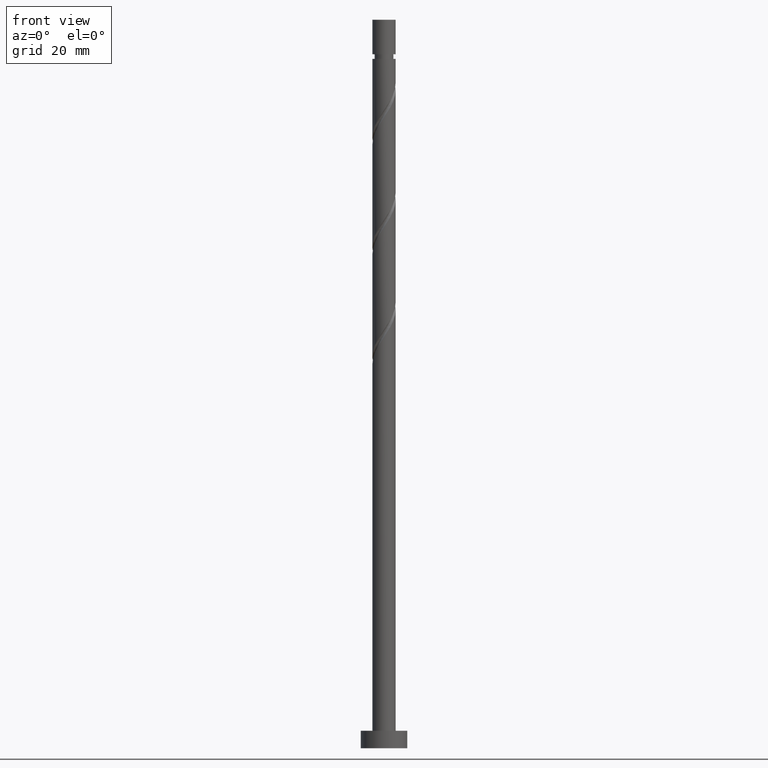
[diagram: clean part render]
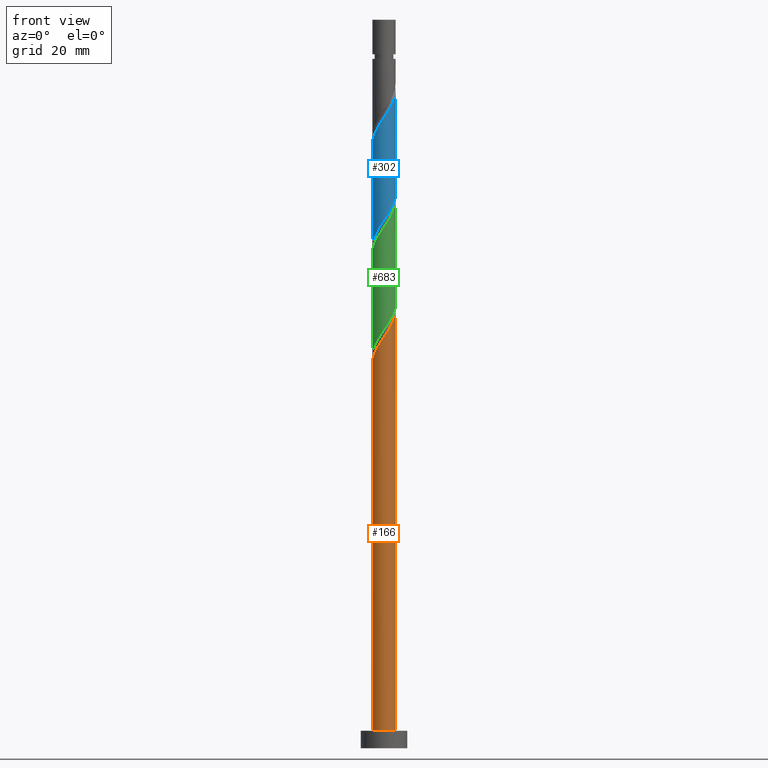
[diagram: same view with three faces highlighted in distinct colors, each labeled with its STEP entity id]
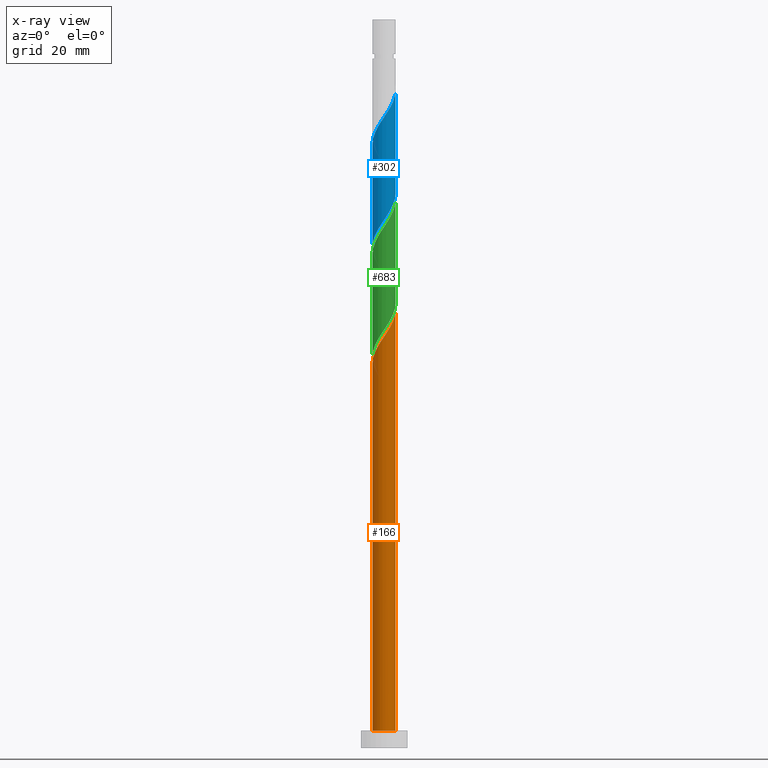
[diagram: x-ray of the same camera — body ghosted, the three highlighted faces saturated]
A machine part, front view with three faces highlighted in distinct colors.
The next image is the same camera in x-ray (body ghosted, the three faces saturated) — at least one of them is partly hidden behind the body in this view.
Their STEP definitions:

[orange] entity #166 — the highlighted cylindrical surface (edge-blend (fillet) strip) has radius 2 mm, axis along (-0, -0, -1).
#74 = CARTESIAN_POINT ( 'NONE',  ( -1.351737732275875903, -1.474043792816781329, 68.37408984378713228 ) ) ;
#81 = CARTESIAN_POINT ( 'NONE',  ( 1.951079754338989725, -0.5418766612026986174, 74.49492317712046940 ) ) ;
#94 = EDGE_LOOP ( 'NONE', ( #929, #1574, #340, #1118 ) ) ;
#125 = CARTESIAN_POINT ( 'NONE',  ( 2.000000000000000000, 2.449293598294705921E-16, 3.000000000000000000 ) ) ;
#133 = EDGE_CURVE ( 'NONE', #1304, #1297, #585, .T. ) ;
#166 = ADVANCED_FACE ( 'NONE', ( #1068 ), #1549, .T. ) ;
#195 = CARTESIAN_POINT ( 'NONE',  ( -1.896963788657571426, -0.7084284778787407477, 66.96158984378715218 ) ) ;
#202 = CARTESIAN_POINT ( 'NONE',  ( 0.3979949748426490075, -1.960000000000002629, 71.19908984378712091 ) ) ;
#208 = CARTESIAN_POINT ( 'NONE',  ( 2.000000000000003109, -0.1139474748928623327, 75.13512374538797189 ) ) ;
#214 = CARTESIAN_POINT ( 'NONE',  ( -2.000000000000002665, 2.773724014893057384E-15, 65.88977510336466992 ) ) ;
#238 = VERTEX_POINT ( 'NONE', #356 ) ;
#271 = EDGE_CURVE ( 'NONE', #238, #1446, #848, .T. ) ;
#320 = CIRCLE ( 'NONE', #854, 2.000000000000000000 ) ;
#327 = CARTESIAN_POINT ( 'NONE',  ( 1.987057982840712000, -0.2271575946980707028, 74.96575651045380084 ) ) ;
#335 = CARTESIAN_POINT ( 'NONE',  ( -2.000000000000002665, 2.773724014893056989E-15, 65.88977510336466992 ) ) ;
#340 = ORIENTED_EDGE ( 'NONE', *, *, #133, .T. ) ;
#356 = CARTESIAN_POINT ( 'NONE',  ( 2.000000000000002220, 2.518841267578560185E-15, 75.30644177003134132 ) ) ;
#373 = VECTOR ( 'NONE', #545, 1000.000000000000000 ) ;
#442 = CARTESIAN_POINT ( 'NONE',  ( -0.5418766612026986174, -1.951079754338989725, 69.78658984378714081 ) ) ;
#452 = DIRECTION ( 'NONE',  ( -0.000000000000000000, -0.000000000000000000, -1.000000000000000000 ) ) ;
#460 = DIRECTION ( 'NONE',  ( -1.000000000000000000, 0.000000000000000000, 0.000000000000000000 ) ) ;
#545 = DIRECTION ( 'NONE',  ( -0.000000000000000000, -0.000000000000000000, -1.000000000000000000 ) ) ;
#560 = CARTESIAN_POINT ( 'NONE',  ( -0.8300743961697162332, -1.819608885673922094, 69.31575651045379516 ) ) ;
#566 = CARTESIAN_POINT ( 'NONE',  ( 1.259949568624708638, -1.585203333415018845, 72.61158984378710102 ) ) ;
#569 = CARTESIAN_POINT ( 'NONE',  ( 0.000000000000000000, 0.000000000000000000, 125.0000000000000000 ) ) ;
#585 = LINE ( 'NONE', #1295, #1333 ) ;
#609 = CARTESIAN_POINT ( 'NONE',  ( 0.000000000000000000, 0.000000000000000000, 3.000000000000000000 ) ) ;
#672 = CARTESIAN_POINT ( 'NONE',  ( -1.585203333415018845, -1.259949568624708638, 67.90325651045380084 ) ) ;
#674 = EDGE_CURVE ( 'NONE', #1304, #238, #1416, .T. ) ;
#679 = CARTESIAN_POINT ( 'NONE',  ( 1.688138017008854241, -1.118272131136733405, 73.55325651045380653 ) ) ;
#692 = CARTESIAN_POINT ( 'NONE',  ( 0.7084284778787407477, -1.896963788657571426, 71.66992317712045235 ) ) ;
#793 = CARTESIAN_POINT ( 'NONE',  ( -2.000000000000003109, -0.2010075630518421974, 66.19198643953338035 ) ) ;
#808 = CARTESIAN_POINT ( 'NONE',  ( 0.9841890232517246373, -1.741083561036295801, 72.14075651045379800 ) ) ;
#848 = LINE ( 'NONE', #871, #373 ) ;
#854 = AXIS2_PLACEMENT_3D ( 'NONE', #609, #1094, #1557 ) ;
#871 = CARTESIAN_POINT ( 'NONE',  ( 2.000000000000000000, 2.449293598294705921E-16, 125.0000000000000000 ) ) ;
#926 = CARTESIAN_POINT ( 'NONE',  ( -0.2271575946980706473, -1.987057982840712000, 70.25742317712048646 ) ) ;
#929 = ORIENTED_EDGE ( 'NONE', *, *, #271, .F. ) ;
#934 = CARTESIAN_POINT ( 'NONE',  ( -1.118272131136732961, -1.688138017008854241, 68.84492317712046372 ) ) ;
#1054 = CARTESIAN_POINT ( 'NONE',  ( 1.474043792816781329, -1.351737732275875903, 73.08242317712044667 ) ) ;
#1068 = FACE_OUTER_BOUND ( 'NONE', #94, .T. ) ;
#1094 = DIRECTION ( 'NONE',  ( 0.000000000000000000, 0.000000000000000000, 1.000000000000000000 ) ) ;
#1118 = ORIENTED_EDGE ( 'NONE', *, *, #1406, .T. ) ;
#1186 = CARTESIAN_POINT ( 'NONE',  ( 2.000000000000002220, 2.518841267578560185E-15, 75.30644177003132711 ) ) ;
#1276 = DIRECTION ( 'NONE',  ( -0.000000000000000000, -0.000000000000000000, -1.000000000000000000 ) ) ;
#1295 = CARTESIAN_POINT ( 'NONE',  ( -2.000000000000000000, 0.000000000000000000, 125.0000000000000000 ) ) ;
#1297 = VERTEX_POINT ( 'NONE', #1464 ) ;
#1304 = VERTEX_POINT ( 'NONE', #214 ) ;
#1333 = VECTOR ( 'NONE', #1276, 1000.000000000000000 ) ;
#1406 = EDGE_CURVE ( 'NONE', #1297, #1446, #320, .T. ) ;
#1409 = CARTESIAN_POINT ( 'NONE',  ( 0.08756147180655743378, -2.023036211342432722, 70.72825651045381790 ) ) ;
#1416 =( BOUNDED_CURVE ( )  B_SPLINE_CURVE ( 2, ( #335, #793, #1523, #195, #1546, #672, #74, #934, #560, #442, #926, #1409, #202, #692, #808, #566, #1054, #679, #1417, #81, #327, #208, #1186 ),
 .UNSPECIFIED., .F., .T. ) 
 B_SPLINE_CURVE_WITH_KNOTS ( ( 3, 2, 2, 2, 2, 2, 2, 2, 2, 2, 2, 3 ),
 ( 0.05453220231385515898, 0.06250000000000000000, 0.07499999999999995559, 0.08750000000000002220, 0.09999999999999997780, 0.1125000000000000444, 0.1250000000000000000, 0.1374999999999999556, 0.1500000000000000222, 0.1624999999999999778, 0.1750000000000000444, 0.1795322023138553325 ),
 .UNSPECIFIED. ) 
 CURVE ( )  GEOMETRIC_REPRESENTATION_ITEM ( )  RATIONAL_B_SPLINE_CURVE ( ( 0.9039174447099402876, 0.9019565955404695856, 0.9090909090909180534, 0.8978984914501340064, 0.9090909090909180534, 0.8978984914501340064, 0.9090909090909180534, 0.8978984914501340064, 0.9090909090909180534, 0.8978984914501340064, 0.9090909090909180534, 0.8978984914501340064, 0.9090909090909180534, 0.8978984914501340064, 0.9090909090909180534, 0.8978984914501340064, 0.9090909090909180534, 0.8978984914501340064, 0.9090909090909180534, 0.8978984914501340064, 0.9090909090909180534, 0.9050328050005823632, 0.9039174447099402876 ) ) 
 REPRESENTATION_ITEM ( '' )  );
#1417 = CARTESIAN_POINT ( 'NONE',  ( 1.819608885673922094, -0.8300743961697162332, 74.02408984378715218 ) ) ;
#1446 = VERTEX_POINT ( 'NONE', #125 ) ;
#1462 = AXIS2_PLACEMENT_3D ( 'NONE', #569, #452, #460 ) ;
#1464 = CARTESIAN_POINT ( 'NONE',  ( -2.000000000000000000, 0.000000000000000000, 3.000000000000000000 ) ) ;
#1523 = CARTESIAN_POINT ( 'NONE',  ( -1.960000000000002629, -0.3979949748426491740, 66.49075651045380653 ) ) ;
#1546 = CARTESIAN_POINT ( 'NONE',  ( -1.741083561036295801, -0.9841890232517248593, 67.43242317712046940 ) ) ;
#1549 = CYLINDRICAL_SURFACE ( 'NONE', #1462, 2.000000000000000000 ) ;
#1557 = DIRECTION ( 'NONE',  ( 1.000000000000000000, 0.000000000000000000, 0.000000000000000000 ) ) ;
#1574 = ORIENTED_EDGE ( 'NONE', *, *, #674, .F. ) ;

[blue] entity #302 — the highlighted cylindrical surface (edge-blend (fillet) strip) has radius 2 mm, axis along (-0, -0, -1).
#57 = CARTESIAN_POINT ( 'NONE',  ( 0.8300743961697144568, -1.819608885673919207, 91.91575651045378947 ) ) ;
#105 = CARTESIAN_POINT ( 'NONE',  ( 1.987057982840712000, -0.2271575946980707028, 112.6324231771204438 ) ) ;
#107 = LINE ( 'NONE', #717, #527 ) ;
#114 = CARTESIAN_POINT ( 'NONE',  ( -1.351737732275875903, -1.474043792816781329, 106.0407565104538037 ) ) ;
#131 = CARTESIAN_POINT ( 'NONE',  ( -1.819608885673919207, -0.8300743961697144568, 87.20742317712046088 ) ) ;
#178 = CARTESIAN_POINT ( 'NONE',  ( 2.000000000000000888, -0.2010075630518394219, 95.03952658137426113 ) ) ;
#186 = CARTESIAN_POINT ( 'NONE',  ( -1.474043792816780218, -1.351737732275873238, 88.14908984378713797 ) ) ;
#215 = VECTOR ( 'NONE', #1367, 1000.000000000000000 ) ;
#235 = CARTESIAN_POINT ( 'NONE',  ( -2.000000000000002665, -0.2010075630518444456, 103.8586531062000375 ) ) ;
#245 = CARTESIAN_POINT ( 'NONE',  ( -1.987057982840708892, -0.2271575946980696759, 86.26575651045379800 ) ) ;
#253 = EDGE_CURVE ( 'NONE', #1420, #1381, #1251, .T. ) ;
#258 = CARTESIAN_POINT ( 'NONE',  ( -0.8300743961697162332, -1.819608885673922094, 106.9824231771204950 ) ) ;
#274 = CARTESIAN_POINT ( 'NONE',  ( 1.959999999999999520, -0.3979949748426494516, 94.74075651045380653 ) ) ;
#298 = CARTESIAN_POINT ( 'NONE',  ( 0.000000000000000000, 0.000000000000000000, 125.0000000000000000 ) ) ;
#302 = ADVANCED_FACE ( 'NONE', ( #1351 ), #1018, .T. ) ;
#305 = CARTESIAN_POINT ( 'NONE',  ( -0.7084284778787401926, -1.896963788657568983, 89.56158984378713228 ) ) ;
#332 = EDGE_LOOP ( 'NONE', ( #647, #1022, #1558, #754 ) ) ;
#365 = CARTESIAN_POINT ( 'NONE',  ( 2.000000000000002665, 1.499310278320571585E-15, 112.9731084366980269 ) ) ;
#376 = DIRECTION ( 'NONE',  ( -0.000000000000000000, -0.000000000000000000, -1.000000000000000000 ) ) ;
#429 = CARTESIAN_POINT ( 'NONE',  ( 1.351737732275873238, -1.474043792816780218, 92.85742317712046656 ) ) ;
#484 = CARTESIAN_POINT ( 'NONE',  ( 1.951079754338989725, -0.5418766612026986174, 112.1615898437871124 ) ) ;
#486 = CARTESIAN_POINT ( 'NONE',  ( -1.999999999999999112, -0.1139474748928690634, 86.09638927551962695 ) ) ;
#493 = CARTESIAN_POINT ( 'NONE',  ( -2.000000000000003109, 1.004537886474782893E-15, 103.5564417700313413 ) ) ;
#502 = CARTESIAN_POINT ( 'NONE',  ( -2.000000000000003109, 1.004537886474782893E-15, 103.5564417700313413 ) ) ;
#527 = VECTOR ( 'NONE', #376, 1000.000000000000000 ) ;
#544 = CARTESIAN_POINT ( 'NONE',  ( -0.08756147180655821094, -2.023036211342430502, 90.50325651045382358 ) ) ;
#552 = CARTESIAN_POINT ( 'NONE',  ( 1.999999999999999556, 2.009075772949579986E-15, 95.34173791754292893 ) ) ;
#591 = CARTESIAN_POINT ( 'NONE',  ( 1.259949568624708638, -1.585203333415018845, 110.2782565104538293 ) ) ;
#600 = CARTESIAN_POINT ( 'NONE',  ( 1.688138017008854241, -1.118272131136733405, 111.2199231771204495 ) ) ;
#616 = CARTESIAN_POINT ( 'NONE',  ( -1.999999999999999556, -2.278951623047284666E-15, 85.92507125087625752 ) ) ;
#647 = ORIENTED_EDGE ( 'NONE', *, *, #967, .F. ) ;
#663 = VERTEX_POINT ( 'NONE', #552 ) ;
#704 = CARTESIAN_POINT ( 'NONE',  ( 2.000000000000002665, 1.499310278320571585E-15, 112.9731084366980269 ) ) ;
#715 = CARTESIAN_POINT ( 'NONE',  ( -0.2271575946980706473, -1.987057982840712000, 107.9240898437871721 ) ) ;
#717 = CARTESIAN_POINT ( 'NONE',  ( -2.000000000000000000, 0.000000000000000000, 125.0000000000000000 ) ) ;
#724 = CARTESIAN_POINT ( 'NONE',  ( -1.896963788657571426, -0.7084284778787407477, 104.6282565104537952 ) ) ;
#728 =( BOUNDED_CURVE ( )  B_SPLINE_CURVE ( 2, ( #1501, #178, #274, #993, #1474, #749, #429, #909, #57, #1034, #783, #544, #1516, #305, #1393, #1272, #186, #1150, #131, #1218, #245, #486, #616 ),
 .UNSPECIFIED., .F., .T. ) 
 B_SPLINE_CURVE_WITH_KNOTS ( ( 3, 2, 2, 2, 2, 2, 2, 2, 2, 2, 2, 3 ),
 ( 0.5545322023138550271, 0.5625000000000000000, 0.5749999999999999556, 0.5875000000000000222, 0.5999999999999999778, 0.6125000000000000444, 0.6250000000000000000, 0.6374999999999999556, 0.6500000000000000222, 0.6624999999999999778, 0.6750000000000000444, 0.6795322023138550271 ),
 .UNSPECIFIED. ) 
 CURVE ( )  GEOMETRIC_REPRESENTATION_ITEM ( )  RATIONAL_B_SPLINE_CURVE ( ( 0.9039174447099341814, 0.9019565955404631463, 0.9090909090909118362, 0.8978984914501279002, 0.9090909090909118362, 0.8978984914501279002, 0.9090909090909118362, 0.8978984914501279002, 0.9090909090909118362, 0.8978984914501279002, 0.9090909090909118362, 0.8978984914501279002, 0.9090909090909118362, 0.8978984914501279002, 0.9090909090909118362, 0.8978984914501279002, 0.9090909090909118362, 0.8978984914501279002, 0.9090909090909118362, 0.8978984914501279002, 0.9090909090909118362, 0.9050328050005764791, 0.9039174447099341814 ) ) 
 REPRESENTATION_ITEM ( '' )  );
#749 = CARTESIAN_POINT ( 'NONE',  ( 1.585203333415016180, -1.259949568624707972, 93.32825651045381221 ) ) ;
#754 = ORIENTED_EDGE ( 'NONE', *, *, #1339, .F. ) ;
#773 = LINE ( 'NONE', #1023, #215 ) ;
#783 = CARTESIAN_POINT ( 'NONE',  ( 0.2271575946980696203, -1.987057982840708892, 90.97408984378712660 ) ) ;
#829 = CARTESIAN_POINT ( 'NONE',  ( 1.474043792816781329, -1.351737732275875903, 110.7490898437871181 ) ) ;
#839 = CARTESIAN_POINT ( 'NONE',  ( 0.3979949748426490075, -1.960000000000002629, 108.8657565104538065 ) ) ;
#909 = CARTESIAN_POINT ( 'NONE',  ( 1.118272131136731407, -1.688138017008852021, 92.38658984378716355 ) ) ;
#966 = VERTEX_POINT ( 'NONE', #1015 ) ;
#967 = EDGE_CURVE ( 'NONE', #1381, #663, #773, .T. ) ;
#972 = CARTESIAN_POINT ( 'NONE',  ( 2.000000000000003109, -0.1139474748928616527, 112.8017904120546291 ) ) ;
#988 = CARTESIAN_POINT ( 'NONE',  ( -1.960000000000002629, -0.3979949748426491740, 104.1574231771204637 ) ) ;
#993 = CARTESIAN_POINT ( 'NONE',  ( 1.896963788657568983, -0.7084284778787403036, 94.26992317712047509 ) ) ;
#994 = CARTESIAN_POINT ( 'NONE',  ( 0.7084284778787407477, -1.896963788657571426, 109.3365898437871664 ) ) ;
#1015 = CARTESIAN_POINT ( 'NONE',  ( -1.999999999999999556, -2.278951623047284666E-15, 85.92507125087625752 ) ) ;
#1018 = CYLINDRICAL_SURFACE ( 'NONE', #1088, 2.000000000000000000 ) ;
#1022 = ORIENTED_EDGE ( 'NONE', *, *, #253, .F. ) ;
#1023 = CARTESIAN_POINT ( 'NONE',  ( 2.000000000000000000, 2.449293598294705921E-16, 125.0000000000000000 ) ) ;
#1034 = CARTESIAN_POINT ( 'NONE',  ( 0.5418766612026972851, -1.951079754338987282, 91.44492317712045804 ) ) ;
#1088 = AXIS2_PLACEMENT_3D ( 'NONE', #298, #1265, #1362 ) ;
#1150 = CARTESIAN_POINT ( 'NONE',  ( -1.688138017008852021, -1.118272131136731407, 87.67825651045382074 ) ) ;
#1195 = CARTESIAN_POINT ( 'NONE',  ( -1.741083561036295801, -0.9841890232517248593, 105.0990898437871266 ) ) ;
#1208 = CARTESIAN_POINT ( 'NONE',  ( 0.08756147180655743378, -2.023036211342432722, 108.3949231771204467 ) ) ;
#1216 = CARTESIAN_POINT ( 'NONE',  ( 1.819608885673922094, -0.8300743961697162332, 111.6907565104537952 ) ) ;
#1218 = CARTESIAN_POINT ( 'NONE',  ( -1.951079754338987282, -0.5418766612026972851, 86.73658984378717207 ) ) ;
#1251 =( BOUNDED_CURVE ( )  B_SPLINE_CURVE ( 2, ( #502, #235, #988, #724, #1195, #1468, #114, #1345, #258, #1310, #715, #1208, #839, #994, #1475, #591, #829, #600, #1216, #484, #105, #972, #365 ),
 .UNSPECIFIED., .F., .T. ) 
 B_SPLINE_CURVE_WITH_KNOTS ( ( 3, 2, 2, 2, 2, 2, 2, 2, 2, 2, 2, 3 ),
 ( 0.5545322023138552492, 0.5625000000000000000, 0.5749999999999999556, 0.5875000000000000222, 0.5999999999999999778, 0.6125000000000000444, 0.6250000000000000000, 0.6374999999999999556, 0.6500000000000000222, 0.6624999999999999778, 0.6750000000000000444, 0.6795322023138553602 ),
 .UNSPECIFIED. ) 
 CURVE ( )  GEOMETRIC_REPRESENTATION_ITEM ( )  RATIONAL_B_SPLINE_CURVE ( ( 0.9039174447099402876, 0.9019565955404695856, 0.9090909090909180534, 0.8978984914501340064, 0.9090909090909180534, 0.8978984914501340064, 0.9090909090909180534, 0.8978984914501340064, 0.9090909090909180534, 0.8978984914501340064, 0.9090909090909180534, 0.8978984914501340064, 0.9090909090909180534, 0.8978984914501340064, 0.9090909090909180534, 0.8978984914501340064, 0.9090909090909180534, 0.8978984914501340064, 0.9090909090909180534, 0.8978984914501340064, 0.9090909090909180534, 0.9050328050005822522, 0.9039174447099401766 ) ) 
 REPRESENTATION_ITEM ( '' )  );
#1265 = DIRECTION ( 'NONE',  ( -0.000000000000000000, -0.000000000000000000, -1.000000000000000000 ) ) ;
#1272 = CARTESIAN_POINT ( 'NONE',  ( -1.259949568624707750, -1.585203333415016180, 88.61992317712046940 ) ) ;
#1310 = CARTESIAN_POINT ( 'NONE',  ( -0.5418766612026986174, -1.951079754338989725, 107.4532565104538264 ) ) ;
#1339 = EDGE_CURVE ( 'NONE', #663, #966, #728, .T. ) ;
#1345 = CARTESIAN_POINT ( 'NONE',  ( -1.118272131136732961, -1.688138017008854241, 106.5115898437871493 ) ) ;
#1351 = FACE_OUTER_BOUND ( 'NONE', #332, .T. ) ;
#1362 = DIRECTION ( 'NONE',  ( -1.000000000000000000, 0.000000000000000000, 0.000000000000000000 ) ) ;
#1367 = DIRECTION ( 'NONE',  ( -0.000000000000000000, -0.000000000000000000, -1.000000000000000000 ) ) ;
#1381 = VERTEX_POINT ( 'NONE', #704 ) ;
#1393 = CARTESIAN_POINT ( 'NONE',  ( -0.9841890232517239712, -1.741083561036292249, 89.09075651045382926 ) ) ;
#1420 = VERTEX_POINT ( 'NONE', #493 ) ;
#1427 = EDGE_CURVE ( 'NONE', #1420, #966, #107, .T. ) ;
#1468 = CARTESIAN_POINT ( 'NONE',  ( -1.585203333415018845, -1.259949568624708638, 105.5699231771204865 ) ) ;
#1474 = CARTESIAN_POINT ( 'NONE',  ( 1.741083561036292249, -0.9841890232517241932, 93.79908984378712944 ) ) ;
#1475 = CARTESIAN_POINT ( 'NONE',  ( 0.9841890232517246373, -1.741083561036295801, 109.8074231771204552 ) ) ;
#1501 = CARTESIAN_POINT ( 'NONE',  ( 1.999999999999999556, 2.009075772949579591E-15, 95.34173791754292893 ) ) ;
#1516 = CARTESIAN_POINT ( 'NONE',  ( -0.3979949748426492850, -1.959999999999999520, 90.03242317712047793 ) ) ;
#1558 = ORIENTED_EDGE ( 'NONE', *, *, #1427, .T. ) ;

[green] entity #683 — the highlighted cylindrical surface (edge-blend (fillet) strip) has radius 2 mm, axis along (-0, -0, -1).
#1 = CARTESIAN_POINT ( 'NONE',  ( -1.999999999999999556, -2.278951623047284666E-15, 67.09173791754292893 ) ) ;
#21 = CARTESIAN_POINT ( 'NONE',  ( 1.951079754338989725, -0.5418766612026986174, 93.32825651045378379 ) ) ;
#32 = DIRECTION ( 'NONE',  ( -0.000000000000000000, -0.000000000000000000, -1.000000000000000000 ) ) ;
#61 = EDGE_LOOP ( 'NONE', ( #301, #633, #697, #617 ) ) ;
#88 = CYLINDRICAL_SURFACE ( 'NONE', #397, 2.000000000000000000 ) ;
#109 = CARTESIAN_POINT ( 'NONE',  ( -1.987057982840708892, -0.2271575946980696759, 67.43242317712046940 ) ) ;
#120 = CARTESIAN_POINT ( 'NONE',  ( -0.9841890232517239712, -1.741083561036292249, 70.25742317712048646 ) ) ;
#127 = CARTESIAN_POINT ( 'NONE',  ( -1.474043792816780218, -1.351737732275873238, 69.31575651045378095 ) ) ;
#134 = CARTESIAN_POINT ( 'NONE',  ( -1.259949568624707750, -1.585203333415016180, 69.78658984378715502 ) ) ;
#231 = CARTESIAN_POINT ( 'NONE',  ( 0.5418766612026972851, -1.951079754338987282, 72.61158984378714365 ) ) ;
#240 = CARTESIAN_POINT ( 'NONE',  ( 0.7084284778787407477, -1.896963788657571426, 90.50325651045378095 ) ) ;
#247 = CARTESIAN_POINT ( 'NONE',  ( -0.2271575946980706473, -1.987057982840712000, 89.09075651045381505 ) ) ;
#255 = CARTESIAN_POINT ( 'NONE',  ( -1.999999999999999556, -0.1139474748928663017, 67.26305594218629835 ) ) ;
#291 = CARTESIAN_POINT ( 'NONE',  ( 2.000000000000002220, 2.518841267578560185E-15, 94.13977510336466992 ) ) ;
#301 = ORIENTED_EDGE ( 'NONE', *, *, #421, .F. ) ;
#342 = VECTOR ( 'NONE', #32, 1000.000000000000000 ) ;
#343 = CARTESIAN_POINT ( 'NONE',  ( -1.951079754338987282, -0.5418766612026972851, 67.90325651045381505 ) ) ;
#362 = CARTESIAN_POINT ( 'NONE',  ( 1.999999999999999556, 2.009075772949579986E-15, 76.50840458420958612 ) ) ;
#369 = LINE ( 'NONE', #1078, #623 ) ;
#370 = CARTESIAN_POINT ( 'NONE',  ( -1.896963788657571426, -0.7084284778787407477, 85.79492317712045235 ) ) ;
#378 = CARTESIAN_POINT ( 'NONE',  ( 1.351737732275873238, -1.474043792816780218, 74.02408984378712375 ) ) ;
#384 = CARTESIAN_POINT ( 'NONE',  ( 2.000000000000003109, -0.1139474748928658715, 93.96845707872131470 ) ) ;
#390 = VERTEX_POINT ( 'NONE', #291 ) ;
#391 =( BOUNDED_CURVE ( )  B_SPLINE_CURVE ( 2, ( #362, #699, #1458, #1432, #729, #1324, #378, #1192, #1198, #231, #464, #949, #1206, #1212, #120, #134, #127, #605, #1342, #343, #109, #255, #1 ),
 .UNSPECIFIED., .F., .T. ) 
 B_SPLINE_CURVE_WITH_KNOTS ( ( 3, 2, 2, 2, 2, 2, 2, 2, 2, 2, 2, 3 ),
 ( 0.8045322023138552492, 0.8125000000000000000, 0.8249999999999999556, 0.8375000000000000222, 0.8499999999999999778, 0.8625000000000000444, 0.8750000000000000000, 0.8874999999999999556, 0.9000000000000000222, 0.9124999999999999778, 0.9250000000000000444, 0.9295322023138551382 ),
 .UNSPECIFIED. ) 
 CURVE ( )  GEOMETRIC_REPRESENTATION_ITEM ( )  RATIONAL_B_SPLINE_CURVE ( ( 0.9039174447099340703, 0.9019565955404634794, 0.9090909090909118362, 0.8978984914501279002, 0.9090909090909118362, 0.8978984914501279002, 0.9090909090909118362, 0.8978984914501279002, 0.9090909090909118362, 0.8978984914501279002, 0.9090909090909118362, 0.8978984914501279002, 0.9090909090909118362, 0.8978984914501279002, 0.9090909090909118362, 0.8978984914501279002, 0.9090909090909118362, 0.8978984914501279002, 0.9090909090909118362, 0.8978984914501279002, 0.9090909090909118362, 0.9050328050005762570, 0.9039174447099340703 ) ) 
 REPRESENTATION_ITEM ( '' )  );
#397 = AXIS2_PLACEMENT_3D ( 'NONE', #455, #941, #1424 ) ;
#421 = EDGE_CURVE ( 'NONE', #390, #1040, #1001, .T. ) ;
#430 = CARTESIAN_POINT ( 'NONE',  ( -2.000000000000002665, 2.773724014893057384E-15, 84.72310843669802694 ) ) ;
#435 = CARTESIAN_POINT ( 'NONE',  ( -1.999999999999999556, -2.278951623047284666E-15, 67.09173791754292893 ) ) ;
#455 = CARTESIAN_POINT ( 'NONE',  ( 0.000000000000000000, 0.000000000000000000, 125.0000000000000000 ) ) ;
#464 = CARTESIAN_POINT ( 'NONE',  ( 0.2271575946980696203, -1.987057982840708892, 72.14075651045378379 ) ) ;
#474 = CARTESIAN_POINT ( 'NONE',  ( -1.351737732275875903, -1.474043792816781329, 87.20742317712046088 ) ) ;
#519 = VERTEX_POINT ( 'NONE', #435 ) ;
#536 = CARTESIAN_POINT ( 'NONE',  ( 1.819608885673922094, -0.8300743961697162332, 92.85742317712045235 ) ) ;
#542 = VERTEX_POINT ( 'NONE', #430 ) ;
#557 =( BOUNDED_CURVE ( )  B_SPLINE_CURVE ( 2, ( #588, #855, #1080, #370, #1560, #1336, #474, #960, #969, #1441, #247, #1316, #1449, #240, #720, #712, #1382, #1505, #536, #21, #1244, #384, #868 ),
 .UNSPECIFIED., .F., .T. ) 
 B_SPLINE_CURVE_WITH_KNOTS ( ( 3, 2, 2, 2, 2, 2, 2, 2, 2, 2, 2, 3 ),
 ( 0.3045322023138552492, 0.3125000000000000000, 0.3249999999999999556, 0.3375000000000000222, 0.3499999999999999778, 0.3625000000000000444, 0.3750000000000000000, 0.3874999999999999556, 0.4000000000000000222, 0.4124999999999999778, 0.4250000000000000444, 0.4295322023138551937 ),
 .UNSPECIFIED. ) 
 CURVE ( )  GEOMETRIC_REPRESENTATION_ITEM ( )  RATIONAL_B_SPLINE_CURVE ( ( 0.9039174447099402876, 0.9019565955404695856, 0.9090909090909180534, 0.8978984914501340064, 0.9090909090909180534, 0.8978984914501340064, 0.9090909090909180534, 0.8978984914501340064, 0.9090909090909180534, 0.8978984914501340064, 0.9090909090909180534, 0.8978984914501340064, 0.9090909090909180534, 0.8978984914501340064, 0.9090909090909180534, 0.8978984914501340064, 0.9090909090909180534, 0.8978984914501340064, 0.9090909090909180534, 0.8978984914501340064, 0.9090909090909180534, 0.9050328050005823632, 0.9039174447099402876 ) ) 
 REPRESENTATION_ITEM ( '' )  );
#588 = CARTESIAN_POINT ( 'NONE',  ( -2.000000000000002665, 2.773724014893056989E-15, 84.72310843669802694 ) ) ;
#605 = CARTESIAN_POINT ( 'NONE',  ( -1.688138017008852021, -1.118272131136731407, 68.84492317712046372 ) ) ;
#617 = ORIENTED_EDGE ( 'NONE', *, *, #689, .F. ) ;
#623 = VECTOR ( 'NONE', #975, 1000.000000000000000 ) ;
#633 = ORIENTED_EDGE ( 'NONE', *, *, #790, .F. ) ;
#683 = ADVANCED_FACE ( 'NONE', ( #1180 ), #88, .T. ) ;
#689 = EDGE_CURVE ( 'NONE', #1040, #519, #391, .T. ) ;
#697 = ORIENTED_EDGE ( 'NONE', *, *, #1237, .T. ) ;
#699 = CARTESIAN_POINT ( 'NONE',  ( 1.999999999999999112, -0.2010075630518448897, 76.20619324804090411 ) ) ;
#712 = CARTESIAN_POINT ( 'NONE',  ( 1.259949568624708638, -1.585203333415018845, 91.44492317712048646 ) ) ;
#720 = CARTESIAN_POINT ( 'NONE',  ( 0.9841890232517246373, -1.741083561036295801, 90.97408984378711239 ) ) ;
#729 = CARTESIAN_POINT ( 'NONE',  ( 1.741083561036292249, -0.9841890232517241932, 74.96575651045380084 ) ) ;
#750 = CARTESIAN_POINT ( 'NONE',  ( 2.000000000000000000, 2.449293598294705921E-16, 125.0000000000000000 ) ) ;
#790 = EDGE_CURVE ( 'NONE', #542, #390, #557, .T. ) ;
#791 = CARTESIAN_POINT ( 'NONE',  ( 1.999999999999999556, 2.009075772949579986E-15, 76.50840458420958612 ) ) ;
#855 = CARTESIAN_POINT ( 'NONE',  ( -2.000000000000002665, -0.2010075630518444456, 85.02531977286673737 ) ) ;
#868 = CARTESIAN_POINT ( 'NONE',  ( 2.000000000000002220, 2.518841267578560185E-15, 94.13977510336466992 ) ) ;
#941 = DIRECTION ( 'NONE',  ( -0.000000000000000000, -0.000000000000000000, -1.000000000000000000 ) ) ;
#949 = CARTESIAN_POINT ( 'NONE',  ( -0.08756147180655821094, -2.023036211342430502, 71.66992317712045235 ) ) ;
#960 = CARTESIAN_POINT ( 'NONE',  ( -1.118272131136732961, -1.688138017008854241, 87.67825651045379232 ) ) ;
#969 = CARTESIAN_POINT ( 'NONE',  ( -0.8300743961697162332, -1.819608885673922094, 88.14908984378713797 ) ) ;
#975 = DIRECTION ( 'NONE',  ( -0.000000000000000000, -0.000000000000000000, -1.000000000000000000 ) ) ;
#1001 = LINE ( 'NONE', #750, #342 ) ;
#1040 = VERTEX_POINT ( 'NONE', #791 ) ;
#1078 = CARTESIAN_POINT ( 'NONE',  ( -2.000000000000000000, 0.000000000000000000, 125.0000000000000000 ) ) ;
#1080 = CARTESIAN_POINT ( 'NONE',  ( -1.960000000000002629, -0.3979949748426491740, 85.32408984378716355 ) ) ;
#1180 = FACE_OUTER_BOUND ( 'NONE', #61, .T. ) ;
#1192 = CARTESIAN_POINT ( 'NONE',  ( 1.118272131136731407, -1.688138017008852021, 73.55325651045382074 ) ) ;
#1198 = CARTESIAN_POINT ( 'NONE',  ( 0.8300743961697144568, -1.819608885673919207, 73.08242317712044667 ) ) ;
#1206 = CARTESIAN_POINT ( 'NONE',  ( -0.3979949748426492850, -1.959999999999999520, 71.19908984378713512 ) ) ;
#1212 = CARTESIAN_POINT ( 'NONE',  ( -0.7084284778787401926, -1.896963788657568983, 70.72825651045383211 ) ) ;
#1237 = EDGE_CURVE ( 'NONE', #542, #519, #369, .T. ) ;
#1244 = CARTESIAN_POINT ( 'NONE',  ( 1.987057982840712000, -0.2271575946980707028, 93.79908984378712944 ) ) ;
#1316 = CARTESIAN_POINT ( 'NONE',  ( 0.08756147180655743378, -2.023036211342432722, 89.56158984378714649 ) ) ;
#1324 = CARTESIAN_POINT ( 'NONE',  ( 1.585203333415016180, -1.259949568624707972, 74.49492317712049783 ) ) ;
#1336 = CARTESIAN_POINT ( 'NONE',  ( -1.585203333415018845, -1.259949568624708638, 86.73658984378712944 ) ) ;
#1342 = CARTESIAN_POINT ( 'NONE',  ( -1.819608885673919207, -0.8300743961697144568, 68.37408984378710386 ) ) ;
#1382 = CARTESIAN_POINT ( 'NONE',  ( 1.474043792816781329, -1.351737732275875903, 91.91575651045380368 ) ) ;
#1424 = DIRECTION ( 'NONE',  ( -1.000000000000000000, 0.000000000000000000, 0.000000000000000000 ) ) ;
#1432 = CARTESIAN_POINT ( 'NONE',  ( 1.896963788657568983, -0.7084284778787403036, 75.43658984378714649 ) ) ;
#1441 = CARTESIAN_POINT ( 'NONE',  ( -0.5418766612026986174, -1.951079754338989725, 88.61992317712048361 ) ) ;
#1449 = CARTESIAN_POINT ( 'NONE',  ( 0.3979949748426490075, -1.960000000000002629, 90.03242317712047793 ) ) ;
#1458 = CARTESIAN_POINT ( 'NONE',  ( 1.959999999999999520, -0.3979949748426494516, 75.90742317712046372 ) ) ;
#1505 = CARTESIAN_POINT ( 'NONE',  ( 1.688138017008854241, -1.118272131136733405, 92.38658984378714933 ) ) ;
#1560 = CARTESIAN_POINT ( 'NONE',  ( -1.741083561036295801, -0.9841890232517248593, 86.26575651045379800 ) ) ;